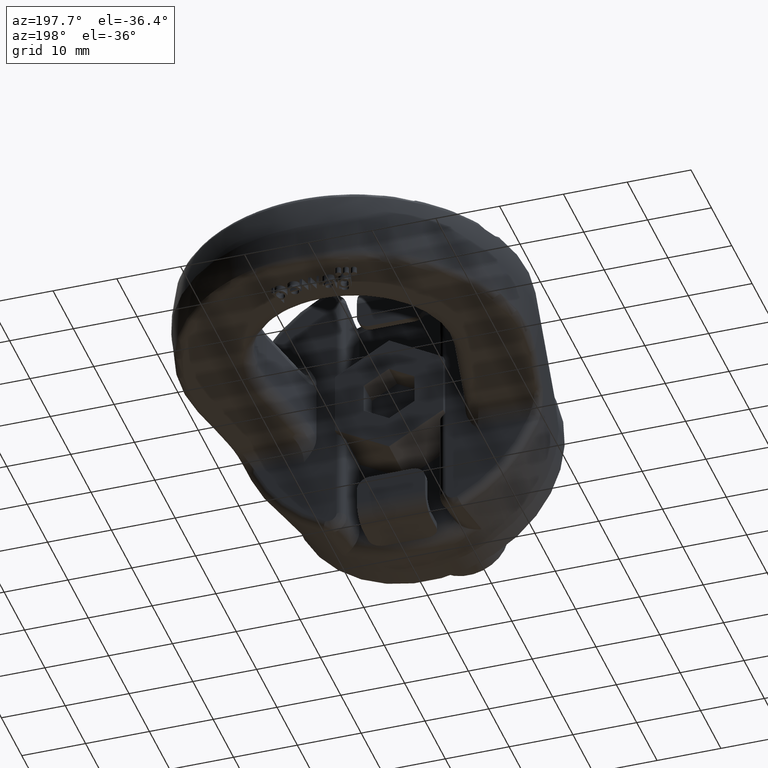
[diagram: clean part render]
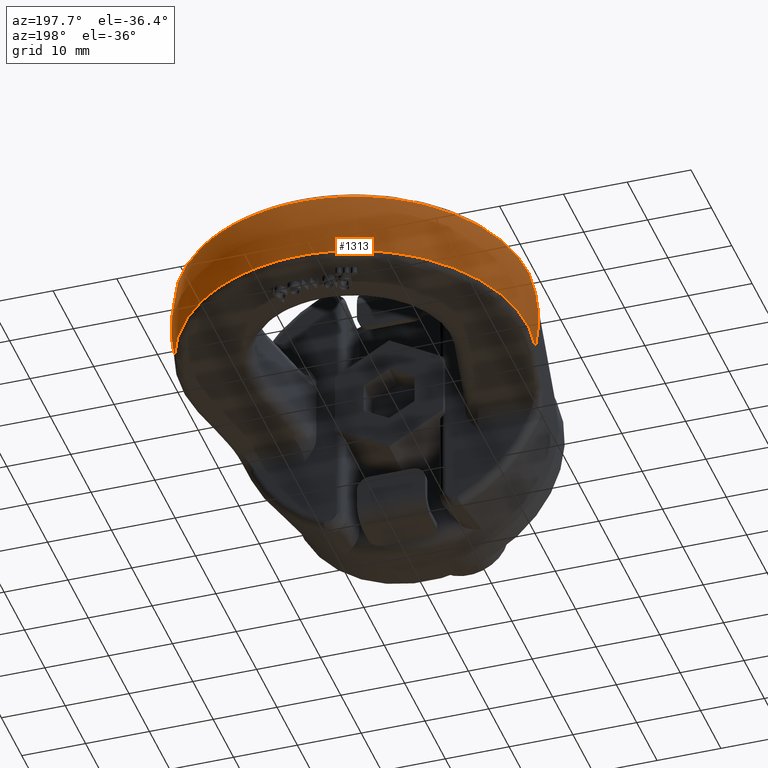
[diagram: same view with one face highlighted and labeled with its STEP entity id]
A machine part, auxiliary view. The second image highlights one B-rep face of the part: STEP entity #1313.
In plain terms, the highlighted spherical surface has radius 27.5 mm.
Its self-contained STEP definition (entity closure, byte-faithful):
#1087=SPHERICAL_SURFACE('',#5104,27.5);
#1094=FACE_OUTER_BOUND('',#1824,.T.);
#1313=ADVANCED_FACE('',(#1094),#1087,.T.);
#1670=CIRCLE('',#5092,26.9573970200514);
#1674=CIRCLE('',#5096,26.9573970200514);
#1679=CIRCLE('',#5102,27.0381124433265);
#1680=CIRCLE('',#5103,27.0381124433265);
#1824=EDGE_LOOP('',(#2803,#2804,#2805,#2806));
#2803=ORIENTED_EDGE('',*,*,#4328,.F.);
#2804=ORIENTED_EDGE('',*,*,#4349,.T.);
#2805=ORIENTED_EDGE('',*,*,#4338,.F.);
#2806=ORIENTED_EDGE('',*,*,#4350,.T.);
#3942=VERTEX_POINT('',#6672);
#3943=VERTEX_POINT('',#6673);
#3952=VERTEX_POINT('',#6725);
#3953=VERTEX_POINT('',#6727);
#4328=EDGE_CURVE('',#3942,#3943,#1670,.T.);
#4338=EDGE_CURVE('',#3952,#3953,#1674,.T.);
#4349=EDGE_CURVE('',#3942,#3953,#1679,.T.);
#4350=EDGE_CURVE('',#3952,#3943,#1680,.T.);
#5092=AXIS2_PLACEMENT_3D('',#6671,#5429,#5430);
#5096=AXIS2_PLACEMENT_3D('',#6726,#5437,#5438);
#5102=AXIS2_PLACEMENT_3D('',#6782,#5449,#5450);
#5103=AXIS2_PLACEMENT_3D('',#6783,#5451,#5452);
#5104=AXIS2_PLACEMENT_3D('',#6784,#5453,#5454);
#5429=DIRECTION('',(-2.02227779131275E-15,-1.,0.));
#5430=DIRECTION('',(1.,-2.05921777944539E-15,0.));
#5437=DIRECTION('',(-2.02227779131275E-15,-1.,0.));
#5438=DIRECTION('',(1.,-2.05921777944539E-15,0.));
#5449=DIRECTION('',(0.,-1.5770213417971E-16,-1.));
#5450=DIRECTION('',(0.,1.,-1.60396133385133E-16));
#5451=DIRECTION('',(-2.34291072916505E-15,-1.5770213417971E-16,1.));
#5452=DIRECTION('',(-3.41904922262442E-31,1.,1.60396133385133E-16));
#5453=DIRECTION('',(-1.96104545135538E-15,-1.,0.));
#5454=DIRECTION('',(1.,-2.01858731750028E-15,0.));
#6671=CARTESIAN_POINT('',(-6.66054902031739E-14,30.0641241824955,0.));
#6672=CARTESIAN_POINT('',(-26.4860487539128,30.0641241824956,5.01901140684413));
#6673=CARTESIAN_POINT('',(-26.4860487539127,30.0641241824955,-5.01901140684418));
#6725=CARTESIAN_POINT('',(26.4860487539128,30.0641241824956,-5.01901140684407));
#6726=CARTESIAN_POINT('',(-6.66054902031739E-14,30.0641241824955,0.));
#6727=CARTESIAN_POINT('',(26.4860487539127,30.0641241824955,5.01901140684411));
#6782=CARTESIAN_POINT('',(-1.38050658413677E-30,35.5,5.01901140684411));
#6783=CARTESIAN_POINT('',(1.17590956748968E-14,35.5,-5.01901140684411));
#6784=CARTESIAN_POINT('',(-1.38050658413677E-30,35.5,0.));